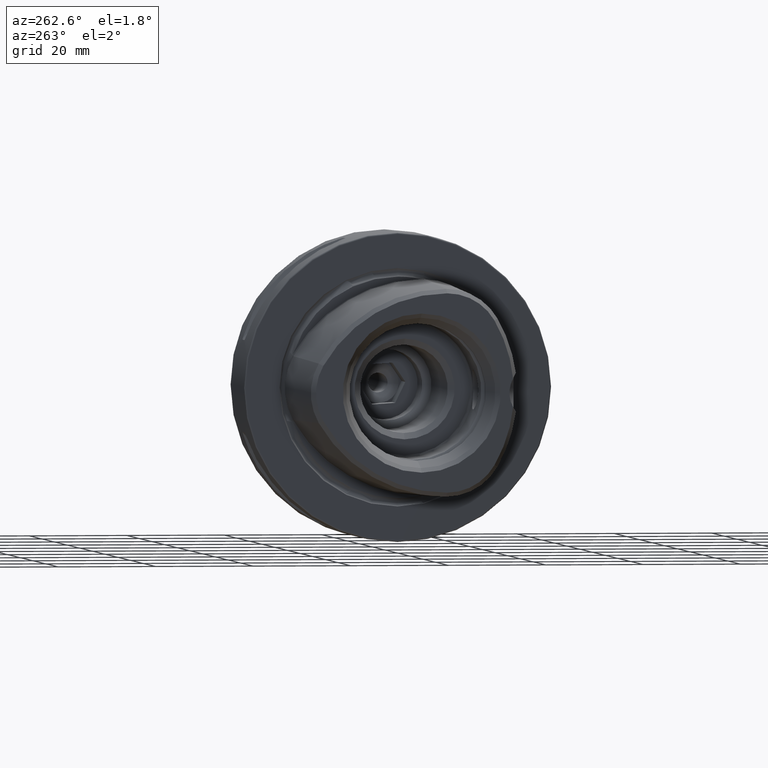
[diagram: clean part render]
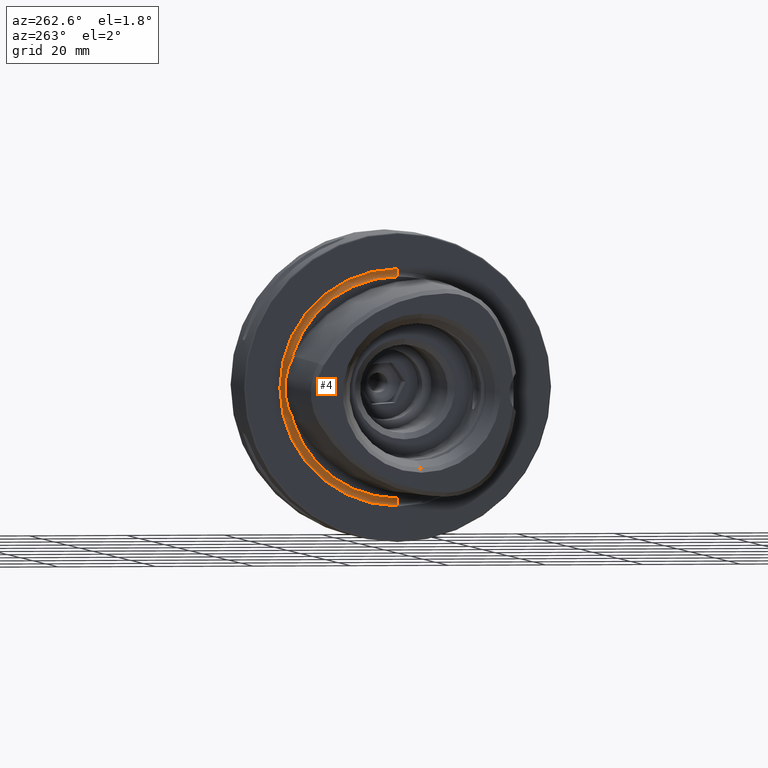
[diagram: same view with one face highlighted and labeled with its STEP entity id]
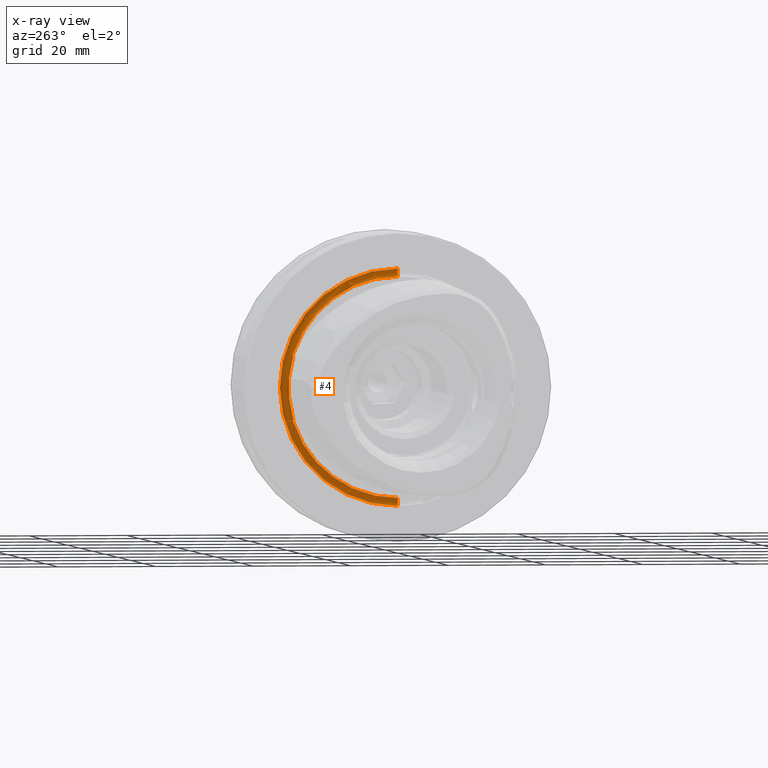
[diagram: x-ray of the same camera — body ghosted, the highlighted face saturated]
A machine part, auxiliary view. The second image highlights one B-rep face of the part: STEP entity #4.
The next image is the same camera in x-ray: the body ghosted, the highlighted face saturated — about 0% of this face is hidden behind the body in this view.
In plain terms, the highlighted toroidal blend (fillet) surface has major radius 23.45 mm and minor (blend) radius 1 mm.
Its self-contained STEP definition (entity closure, byte-faithful):
#4 = ADVANCED_FACE ( 'NONE', ( #2180 ), #6814, .F. ) ;
#48 = CIRCLE ( 'NONE', #5195, 22.44999999999999900 ) ;
#82 = CARTESIAN_POINT ( 'NONE',  ( -0.3949768888752963100, 21.53409040439662200, 6.432603100630296400 ) ) ;
#123 = CARTESIAN_POINT ( 'NONE',  ( -0.3833787573272992000, 21.53935413412253700, 6.424087354426694300 ) ) ;
#176 = CARTESIAN_POINT ( 'NONE',  ( -0.2413344534512544800, 21.54460069908448400, -6.562359156738051700 ) ) ;
#194 = CARTESIAN_POINT ( 'NONE',  ( -0.2302503823408612300, 21.53197660380216400, -6.620072570359474700 ) ) ;
#275 = ORIENTED_EDGE ( 'NONE', *, *, #4147, .T. ) ;
#293 = DIRECTION ( 'NONE',  ( 0.0000000000000000000, 0.0000000000000000000, 1.000000000000000000 ) ) ;
#321 = ORIENTED_EDGE ( 'NONE', *, *, #5138, .F. ) ;
#336 = AXIS2_PLACEMENT_3D ( 'NONE', #1703, #2844, #4187 ) ;
#350 = CARTESIAN_POINT ( 'NONE',  ( 0.09289321881346401800, 0.0000000000000000000, 24.15710678118653800 ) ) ;
#509 = EDGE_CURVE ( 'NONE', #3113, #2450, #6884, .T. ) ;
#618 = DIRECTION ( 'NONE',  ( -1.000000000000000000, -0.0000000000000000000, -0.0000000000000000000 ) ) ;
#629 = CIRCLE ( 'NONE', #1846, 1.000000000000000900 ) ;
#664 = CARTESIAN_POINT ( 'NONE',  ( -0.1999999999999929300, 21.45524819876757000, -6.908691159647262700 ) ) ;
#747 = DIRECTION ( 'NONE',  ( 0.0000000000000000000, 8.881784197001252300E-016, 1.000000000000000000 ) ) ;
#870 = CARTESIAN_POINT ( 'NONE',  ( -0.6142135623742908100, 21.48823023230910000, -6.500650850743888000 ) ) ;
#877 = ORIENTED_EDGE ( 'NONE', *, *, #3887, .F. ) ;
#927 = CARTESIAN_POINT ( 'NONE',  ( -0.1999999999999999600, 2.760331875788153800E-015, -22.53982027887554200 ) ) ;
#958 = AXIS2_PLACEMENT_3D ( 'NONE', #5131, #3505, #293 ) ;
#1110 = CARTESIAN_POINT ( 'NONE',  ( -0.1999999999999999800, 0.0000000000000000000, 0.0000000000000000000 ) ) ;
#1136 = CARTESIAN_POINT ( 'NONE',  ( -0.6142135623742908100, 21.48823023230910000, -6.500650850743888000 ) ) ;
#1210 = CARTESIAN_POINT ( 'NONE',  ( -0.3700388828232116200, 21.54464345172957700, 6.417590951102884100 ) ) ;
#1240 = CARTESIAN_POINT ( 'NONE',  ( -0.3259322125866500100, 21.55614667770884200, 6.421790573067638300 ) ) ;
#1255 = CARTESIAN_POINT ( 'NONE',  ( -0.5336367074315902000, 21.49125106873943000, 6.499492498077597900 ) ) ;
#1308 = CARTESIAN_POINT ( 'NONE',  ( -0.2301118704714638100, 21.53180521632426900, 6.620826329775630900 ) ) ;
#1335 = DIRECTION ( 'NONE',  ( 1.000000000000000000, -0.0000000000000000000, -0.0000000000000000000 ) ) ;
#1483 = VERTEX_POINT ( 'NONE', #2864 ) ;
#1681 = CARTESIAN_POINT ( 'NONE',  ( -0.5744190277416505500, 21.48697857794954700, -6.504788257546655600 ) ) ;
#1703 = CARTESIAN_POINT ( 'NONE',  ( 0.09289321881346401800, 0.0000000000000000000, 0.0000000000000000000 ) ) ;
#1713 = VERTEX_POINT ( 'NONE', #350 ) ;
#1791 = CARTESIAN_POINT ( 'NONE',  ( -0.3406129650155819700, 21.55334388904470100, -6.416006852329190700 ) ) ;
#1818 = CARTESIAN_POINT ( 'NONE',  ( -0.1999999999999999600, 0.0000000000000000000, 22.53982027887554200 ) ) ;
#1846 = AXIS2_PLACEMENT_3D ( 'NONE', #6047, #3331, #4468 ) ;
#1863 = CARTESIAN_POINT ( 'NONE',  ( -0.3949768888752963100, 21.53409040439662200, 6.432603100630296400 ) ) ;
#1887 = CARTESIAN_POINT ( 'NONE',  ( -0.3949768888752963100, 21.53409040439758800, -6.432603100628622200 ) ) ;
#1911 = EDGE_LOOP ( 'NONE', ( #2188, #2041, #6442, #3390, #4683, #275, #877, #4645, #2976, #321 ) ) ;
#2022 = EDGE_CURVE ( 'NONE', #4859, #3527, #5236, .T. ) ;
#2041 = ORIENTED_EDGE ( 'NONE', *, *, #3464, .F. ) ;
#2108 = EDGE_CURVE ( 'NONE', #3527, #1713, #2527, .T. ) ;
#2140 = AXIS2_PLACEMENT_3D ( 'NONE', #4573, #1335, #747 ) ;
#2180 = FACE_OUTER_BOUND ( 'NONE', #1911, .T. ) ;
#2188 = ORIENTED_EDGE ( 'NONE', *, *, #5701, .F. ) ;
#2193 = DIRECTION ( 'NONE',  ( 0.0000000000000000000, 0.0000000000000000000, 1.000000000000000000 ) ) ;
#2369 = CARTESIAN_POINT ( 'NONE',  ( -0.3833639890672351200, 21.53936083661206900, -6.424076510979467100 ) ) ;
#2386 = CARTESIAN_POINT ( 'NONE',  ( -0.2899390324917293600, 21.55942768648657500, -6.450437879010316100 ) ) ;
#2421 = CARTESIAN_POINT ( 'NONE',  ( -0.6142135623730948800, 0.0000000000000000000, 23.44999999999999900 ) ) ;
#2450 = VERTEX_POINT ( 'NONE', #4919 ) ;
#2481 = B_SPLINE_CURVE_WITH_KNOTS ( 'NONE', 3,
 ( #1863, #5104, #4498, #1255, #4586, #6075 ),
 .UNSPECIFIED., .F., .F.,
 ( 4, 2, 4 ),
 ( 2.625194856279766600E-007, 0.0001206802102540548200, 0.0002410979010224816500 ),
 .UNSPECIFIED. ) ;
#2527 = CIRCLE ( 'NONE', #3713, 1.000000000000000900 ) ;
#2844 = DIRECTION ( 'NONE',  ( -1.000000000000000000, -0.0000000000000000000, -0.0000000000000000000 ) ) ;
#2851 = CARTESIAN_POINT ( 'NONE',  ( -0.2758845136232500600, 21.55643070862849700, 6.478527703145767100 ) ) ;
#2857 = CARTESIAN_POINT ( 'NONE',  ( -0.2041275645448655300, 21.48978227137902100, -6.793663107005317100 ) ) ;
#2864 = CARTESIAN_POINT ( 'NONE',  ( 0.09289321881346401800, 2.958392349624090700E-015, -24.15710678118653800 ) ) ;
#2907 = VERTEX_POINT ( 'NONE', #82 ) ;
#2973 = B_SPLINE_CURVE_WITH_KNOTS ( 'NONE', 3,
 ( #5097, #2369, #6170, #1791, #3956, #2386, #3431, #176, #194, #2857, #664, #3999 ),
 .UNSPECIFIED., .F., .F.,
 ( 4, 2, 2, 2, 2, 4 ),
 ( 2.625087503294080500E-007, 4.595873697281156300E-005, 9.165496519529372600E-005, 0.0001830474216402589100, 0.0003658323345301892700, 0.0007314021603100500900 ),
 .UNSPECIFIED. ) ;
#2976 = ORIENTED_EDGE ( 'NONE', *, *, #4633, .F. ) ;
#2983 = VERTEX_POINT ( 'NONE', #1887 ) ;
#3076 = CIRCLE ( 'NONE', #336, 24.15710678118653800 ) ;
#3090 = DIRECTION ( 'NONE',  ( 0.0000000000000000000, 0.0000000000000000000, -1.000000000000000000 ) ) ;
#3113 = VERTEX_POINT ( 'NONE', #927 ) ;
#3124 = CARTESIAN_POINT ( 'NONE',  ( -0.1999999999999998200, 21.41813709425913700, 7.021887325750106400 ) ) ;
#3227 = VERTEX_POINT ( 'NONE', #3666 ) ;
#3289 = CARTESIAN_POINT ( 'NONE',  ( -0.6142135623730947700, 0.0000000000000000000, 0.0000000000000000000 ) ) ;
#3331 = DIRECTION ( 'NONE',  ( -0.0000000000000000000, 1.000000000000000000, 1.224646799147353200E-016 ) ) ;
#3376 = CARTESIAN_POINT ( 'NONE',  ( -0.1999999999999998200, 21.41813709425913700, 7.021887325750106400 ) ) ;
#3390 = ORIENTED_EDGE ( 'NONE', *, *, #2022, .T. ) ;
#3431 = CARTESIAN_POINT ( 'NONE',  ( -0.2758258246701415000, 21.55642893934314200, -6.478604898316112900 ) ) ;
#3464 = EDGE_CURVE ( 'NONE', #2907, #3227, #2481, .T. ) ;
#3505 = DIRECTION ( 'NONE',  ( -1.000000000000000000, -0.0000000000000000000, -0.0000000000000000000 ) ) ;
#3527 = VERTEX_POINT ( 'NONE', #1818 ) ;
#3666 = CARTESIAN_POINT ( 'NONE',  ( -0.6142135623590958500, 21.48823023230862400, 6.500650850745461900 ) ) ;
#3713 = AXIS2_PLACEMENT_3D ( 'NONE', #2421, #6335, #3090 ) ;
#3887 = EDGE_CURVE ( 'NONE', #3113, #1483, #629, .T. ) ;
#3892 = CARTESIAN_POINT ( 'NONE',  ( -0.3406867216763094800, 21.55332519272098700, 6.415997525165859200 ) ) ;
#3916 = CARTESIAN_POINT ( 'NONE',  ( -0.1999999999999979800, 21.45541093516931100, 6.908194781622223800 ) ) ;
#3956 = CARTESIAN_POINT ( 'NONE',  ( -0.3257722404603258800, 21.55616814347138500, -6.421890242959793000 ) ) ;
#3971 = CARTESIAN_POINT ( 'NONE',  ( -0.2041462750779514700, 21.48970702718796100, 6.793874620272719200 ) ) ;
#3999 = CARTESIAN_POINT ( 'NONE',  ( -0.1999999999999998200, 21.41813709425914100, -7.021887325750096700 ) ) ;
#4063 = B_SPLINE_CURVE_WITH_KNOTS ( 'NONE', 3,
 ( #1136, #1681, #6653, #5600, #4548, #5073 ),
 .UNSPECIFIED., .F., .F.,
 ( 4, 2, 4 ),
 ( 0.0002582680041422486400, 0.0003785464450842058800, 0.0004988248860261632800 ),
 .UNSPECIFIED. ) ;
#4064 = EDGE_CURVE ( 'NONE', #4859, #2907, #6235, .T. ) ;
#4147 = EDGE_CURVE ( 'NONE', #1713, #1483, #3076, .T. ) ;
#4187 = DIRECTION ( 'NONE',  ( 0.0000000000000000000, 0.0000000000000000000, 1.000000000000000000 ) ) ;
#4468 = DIRECTION ( 'NONE',  ( 0.0000000000000000000, -1.224646799147353500E-016, 1.000000000000000000 ) ) ;
#4498 = CARTESIAN_POINT ( 'NONE',  ( -0.4594230253479581500, 21.50802237784448300, 6.474354008767335200 ) ) ;
#4505 = CARTESIAN_POINT ( 'NONE',  ( -0.2415727758488758800, 21.54471885788894900, 6.561650822613918500 ) ) ;
#4548 = CARTESIAN_POINT ( 'NONE',  ( -0.4255219808972196500, 21.52022773107087900, -6.455030355426970300 ) ) ;
#4573 = CARTESIAN_POINT ( 'NONE',  ( -0.1999999999999999800, 0.0000000000000000000, 0.0000000000000000000 ) ) ;
#4586 = CARTESIAN_POINT ( 'NONE',  ( -0.5745216435725915000, 21.48698180551840800, 6.504777588656282600 ) ) ;
#4633 = EDGE_CURVE ( 'NONE', #2983, #2450, #2973, .T. ) ;
#4645 = ORIENTED_EDGE ( 'NONE', *, *, #509, .T. ) ;
#4683 = ORIENTED_EDGE ( 'NONE', *, *, #2108, .T. ) ;
#4859 = VERTEX_POINT ( 'NONE', #3124 ) ;
#4905 = DIRECTION ( 'NONE',  ( 1.000000000000000000, -0.0000000000000000000, -0.0000000000000000000 ) ) ;
#4919 = CARTESIAN_POINT ( 'NONE',  ( -0.1999999999999998200, 21.41813709425914100, -7.021887325750096700 ) ) ;
#4965 = AXIS2_PLACEMENT_3D ( 'NONE', #1110, #4905, #5433 ) ;
#5073 = CARTESIAN_POINT ( 'NONE',  ( -0.3949768888752963100, 21.53409040439758800, -6.432603100628622200 ) ) ;
#5097 = CARTESIAN_POINT ( 'NONE',  ( -0.3949768888752963100, 21.53409040439758800, -6.432603100628622200 ) ) ;
#5104 = CARTESIAN_POINT ( 'NONE',  ( -0.4255629235283343600, 21.52020914953958900, 6.455060416926802000 ) ) ;
#5131 = CARTESIAN_POINT ( 'NONE',  ( -0.6142135623730948800, 0.0000000000000000000, 0.0000000000000000000 ) ) ;
#5138 = EDGE_CURVE ( 'NONE', #6011, #2983, #4063, .T. ) ;
#5195 = AXIS2_PLACEMENT_3D ( 'NONE', #3289, #618, #2193 ) ;
#5236 = CIRCLE ( 'NONE', #2140, 22.53982027887554200 ) ;
#5433 = DIRECTION ( 'NONE',  ( 0.0000000000000000000, -8.881784197001252300E-016, 1.000000000000000000 ) ) ;
#5559 = CARTESIAN_POINT ( 'NONE',  ( -0.2899092495528048400, 21.55944414048469700, 6.450406387045092900 ) ) ;
#5600 = CARTESIAN_POINT ( 'NONE',  ( -0.4586402332964584200, 21.50823201079712300, -6.474032391549832800 ) ) ;
#5701 = EDGE_CURVE ( 'NONE', #3227, #6011, #48, .T. ) ;
#6011 = VERTEX_POINT ( 'NONE', #870 ) ;
#6047 = CARTESIAN_POINT ( 'NONE',  ( -0.6142135623730948800, 2.871796744000542900E-015, -23.44999999999999900 ) ) ;
#6075 = CARTESIAN_POINT ( 'NONE',  ( -0.6142135623590958500, 21.48823023230862400, 6.500650850745461900 ) ) ;
#6113 = CARTESIAN_POINT ( 'NONE',  ( -0.3949768888752963100, 21.53409040439662200, 6.432603100630296400 ) ) ;
#6170 = CARTESIAN_POINT ( 'NONE',  ( -0.3700128046347454000, 21.54465427384322900, -6.417576249446713500 ) ) ;
#6235 = B_SPLINE_CURVE_WITH_KNOTS ( 'NONE', 3,
 ( #3376, #3916, #3971, #1308, #4505, #2851, #5559, #1240, #3892, #1210, #123, #6113 ),
 .UNSPECIFIED., .F., .F.,
 ( 4, 2, 2, 2, 2, 4 ),
 ( 0.001248980811655580200, 0.001608952843826479300, 0.001788938859911931100, 0.001878931867954656400, 0.001923928371976020200, 0.001968924875997383900 ),
 .UNSPECIFIED. ) ;
#6335 = DIRECTION ( 'NONE',  ( 0.0000000000000000000, -1.000000000000000000, 0.0000000000000000000 ) ) ;
#6442 = ORIENTED_EDGE ( 'NONE', *, *, #4064, .F. ) ;
#6653 = CARTESIAN_POINT ( 'NONE',  ( -0.5336334607138143400, 21.49121941142555400, -6.499547270744550100 ) ) ;
#6814 = TOROIDAL_SURFACE ( 'NONE', #958, 23.44999999999999900, 1.000000000000000000 ) ;
#6884 = CIRCLE ( 'NONE', #4965, 22.53982027887554200 ) ;